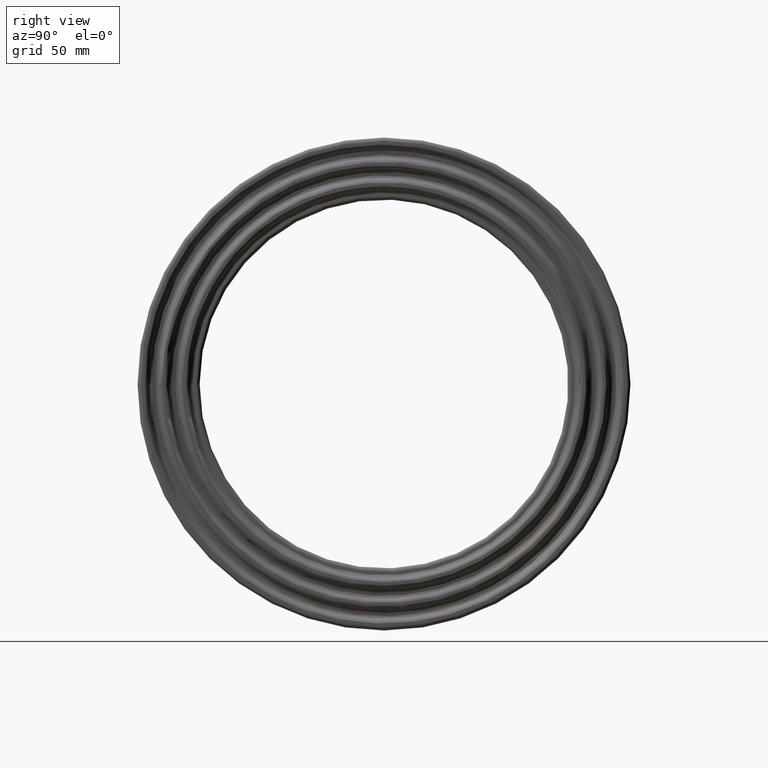
[diagram: clean part render]
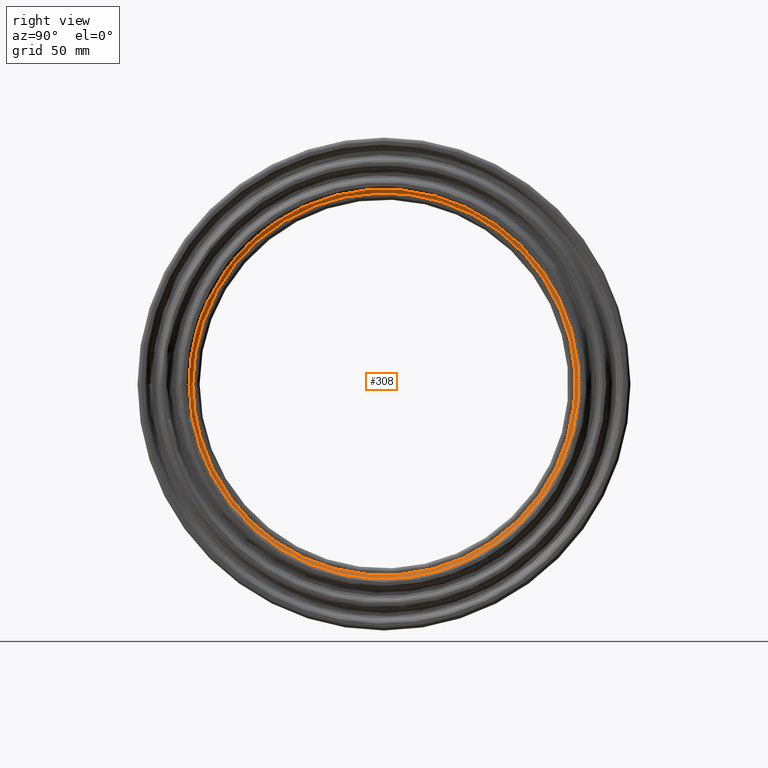
[diagram: same view with one face highlighted and labeled with its STEP entity id]
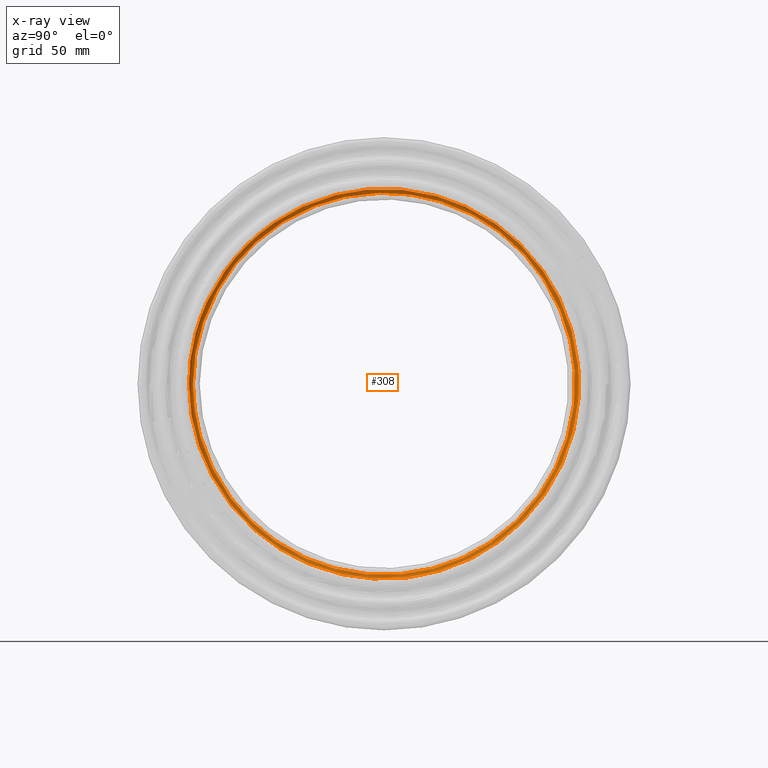
[diagram: x-ray of the same camera — body ghosted, the highlighted face saturated]
A machine part, right view. The second image highlights one B-rep face of the part: STEP entity #308.
The next image is the same camera in x-ray: the body ghosted, the highlighted face saturated — about 0% of this face is hidden behind the body in this view.
In plain terms, the highlighted face is a freeform B-spline surface patch.
Its self-contained STEP definition (entity closure, byte-faithful):
#15=B_SPLINE_SURFACE_WITH_KNOTS('',3,3,((#537,#538,#539,#540,#541,#542,
#543,#544,#545,#546,#547,#548,#549,#550,#551,#552,#553,#554,#555,#556,#557,
#558,#559,#560,#561,#562,#563,#564,#565,#566,#567,#568,#569,#570,#571,#572,
#573,#574,#575,#576,#577,#578,#579,#580,#581,#582,#583,#584,#585,#586,#587),
(#588,#589,#590,#591,#592,#593,#594,#595,#596,#597,#598,#599,#600,#601,
#602,#603,#604,#605,#606,#607,#608,#609,#610,#611,#612,#613,#614,#615,#616,
#617,#618,#619,#620,#621,#622,#623,#624,#625,#626,#627,#628,#629,#630,#631,
#632,#633,#634,#635,#636,#637,#638),(#639,#640,#641,#642,#643,#644,#645,
#646,#647,#648,#649,#650,#651,#652,#653,#654,#655,#656,#657,#658,#659,#660,
#661,#662,#663,#664,#665,#666,#667,#668,#669,#670,#671,#672,#673,#674,#675,
#676,#677,#678,#679,#680,#681,#682,#683,#684,#685,#686,#687,#688,#689),
(#690,#691,#692,#693,#694,#695,#696,#697,#698,#699,#700,#701,#702,#703,
#704,#705,#706,#707,#708,#709,#710,#711,#712,#713,#714,#715,#716,#717,#718,
#719,#720,#721,#722,#723,#724,#725,#726,#727,#728,#729,#730,#731,#732,#733,
#734,#735,#736,#737,#738,#739,#740),(#741,#742,#743,#744,#745,#746,#747,
#748,#749,#750,#751,#752,#753,#754,#755,#756,#757,#758,#759,#760,#761,#762,
#763,#764,#765,#766,#767,#768,#769,#770,#771,#772,#773,#774,#775,#776,#777,
#778,#779,#780,#781,#782,#783,#784,#785,#786,#787,#788,#789,#790,#791)),
 .UNSPECIFIED.,.F.,.T.,.F.,(4,1,4),(4,1,1,1,1,1,1,1,1,1,1,1,1,1,1,1,1,1,
1,1,1,1,1,1,1,1,1,1,1,1,1,1,1,1,1,1,1,1,1,1,1,1,1,1,1,1,1,1,4),(0.,0.571428571428571,
1.),(30.759522136608,31.8580764986297,32.9566308606514,35.1537395846949,
37.3508483087383,38.44940267076,39.5479570327817,41.012696182144,42.4774353315063,
45.4069136302309,46.8716527795931,48.3363919289554,49.8011310783177,51.26587022768,
52.7306093770423,54.1953485264046,55.6600876757668,57.1248268251291,60.0543051238537,
61.7021366668863,62.9837834225783,64.4485225719406,65.9132617213028,66.8287236896543,
67.3780008706651,68.8427400200274,70.3074791693897,71.2229411377411,71.772218318752,
73.2369574681143,74.7016966174766,75.8002509794983,77.9973597035417,78.2719982940471,
79.0959140655634,80.1944684275851,81.2930227896069,81.8422999706177,83.4901315136503,
85.6872402376937,86.0991981234519,86.7857945997154,87.8843489617371,88.7082647332534,
88.9829033237589,90.0814576857806,91.1800120478023,92.0039278193186,92.278566409824),
 .UNSPECIFIED.);
#24=B_SPLINE_CURVE_WITH_KNOTS('',3,(#483,#484,#485,#486,#487,#488,#489,
#490,#491,#492,#493,#494,#495,#496,#497,#498,#499,#500,#501,#502,#503,#504,
#505,#506,#507,#508,#509,#510,#511,#512,#513,#514,#515,#516,#517,#518,#519,
#520,#521,#522,#523,#524,#525,#526,#527,#528,#529,#530,#531,#532,#533),
 .UNSPECIFIED.,.T.,.F.,(4,1,1,1,1,1,1,1,1,1,1,1,1,1,1,1,1,1,1,1,1,1,1,1,
1,1,1,1,1,1,1,1,1,1,1,1,1,1,1,1,1,1,1,1,1,1,1,1,4),(-92.278566409824,-92.0039278193186,
-91.1800120478023,-90.0814576857806,-88.9829033237589,-88.7082647332534,
-87.8843489617371,-86.7857945997154,-86.0991981234519,-85.6872402376937,
-83.4901315136503,-81.8422999706177,-81.2930227896069,-80.1944684275851,
-79.0959140655634,-78.2719982940471,-77.9973597035417,-75.8002509794983,
-74.7016966174766,-73.2369574681143,-71.772218318752,-71.2229411377411,
-70.3074791693897,-68.8427400200274,-67.3780008706651,-66.8287236896543,
-65.9132617213028,-64.4485225719406,-62.9837834225783,-61.7021366668863,
-60.0543051238537,-57.1248268251291,-55.6600876757668,-54.1953485264046,
-52.7306093770423,-51.26587022768,-49.8011310783177,-48.3363919289554,-46.8716527795931,
-45.4069136302309,-42.4774353315063,-41.012696182144,-39.5479570327817,
-38.44940267076,-37.3508483087383,-35.1537395846949,-32.9566308606514,-31.8580764986297,
-30.759522136608),.UNSPECIFIED.);
#25=B_SPLINE_CURVE_WITH_KNOTS('',3,(#794,#795,#796,#797,#798,#799,#800,
#801,#802,#803,#804,#805,#806,#807,#808,#809,#810,#811,#812,#813,#814,#815,
#816,#817,#818,#819,#820,#821,#822,#823,#824,#825,#826,#827,#828,#829,#830,
#831,#832,#833,#834,#835,#836,#837,#838,#839,#840,#841,#842,#843,#844),
 .UNSPECIFIED.,.T.,.F.,(4,1,1,1,1,1,1,1,1,1,1,1,1,1,1,1,1,1,1,1,1,1,1,1,
1,1,1,1,1,1,1,1,1,1,1,1,1,1,1,1,1,1,1,1,1,1,1,1,4),(30.759522136608,31.8580764986297,
32.9566308606514,35.1537395846949,37.3508483087383,38.44940267076,39.5479570327817,
41.012696182144,42.4774353315063,45.4069136302309,46.8716527795931,48.3363919289554,
49.8011310783177,51.26587022768,52.7306093770423,54.1953485264046,55.6600876757668,
57.1248268251291,60.0543051238537,61.7021366668863,62.9837834225783,64.4485225719406,
65.9132617213028,66.8287236896543,67.3780008706651,68.8427400200274,70.3074791693897,
71.2229411377411,71.772218318752,73.2369574681143,74.7016966174766,75.8002509794983,
77.9973597035417,78.2719982940471,79.0959140655634,80.1944684275851,81.2930227896069,
81.8422999706177,83.4901315136503,85.6872402376937,86.0991981234519,86.7857945997154,
87.8843489617371,88.7082647332534,88.9829033237589,90.0814576857806,91.1800120478023,
92.0039278193186,92.278566409824),.UNSPECIFIED.);
#69=FACE_OUTER_BOUND('',#100,.T.);
#100=EDGE_LOOP('',(#235,#236,#237,#238));
#148=CIRCLE('',#341,2.00000000000001);
#170=VERTEX_POINT('',#482);
#172=VERTEX_POINT('',#792);
#198=EDGE_CURVE('',#170,#170,#24,.T.);
#200=EDGE_CURVE('',#172,#170,#148,.T.);
#201=EDGE_CURVE('',#172,#172,#25,.T.);
#235=ORIENTED_EDGE('',*,*,#200,.T.);
#236=ORIENTED_EDGE('',*,*,#198,.T.);
#237=ORIENTED_EDGE('',*,*,#200,.F.);
#238=ORIENTED_EDGE('',*,*,#201,.T.);
#308=ADVANCED_FACE('',(#69),#15,.T.);
#341=AXIS2_PLACEMENT_3D('',#793,#395,#396);
#395=DIRECTION('center_axis',(0.,0.000811828910618773,-0.999999670466856));
#396=DIRECTION('ref_axis',(-0.287499999999994,-0.957780322104063,-0.000777554011735657));
#482=CARTESIAN_POINT('',(111.15,-98.502178322692,-0.0799669424734816));
#483=CARTESIAN_POINT('Ctrl Pts',(111.15,-98.5011021784736,-0.0818176149315181));
#484=CARTESIAN_POINT('Ctrl Pts',(111.15,-98.502064918281,0.835613050477163));
#485=CARTESIAN_POINT('Ctrl Pts',(111.15,-98.4558233940393,4.50210411810118));
#486=CARTESIAN_POINT('Ctrl Pts',(111.15,-97.9483821969076,11.8348021406527));
#487=CARTESIAN_POINT('Ctrl Pts',(111.15,-96.255296192054,21.8849786156422));
#488=CARTESIAN_POINT('Ctrl Pts',(111.15,-93.9542163087297,29.8858635475718));
#489=CARTESIAN_POINT('Ctrl Pts',(111.15,-91.4266561645241,36.8069656742866));
#490=CARTESIAN_POINT('Ctrl Pts',(111.15,-88.5370957198375,43.5336017080951));
#491=CARTESIAN_POINT('Ctrl Pts',(111.15,-84.2989958749755,51.2229079409485));
#492=CARTESIAN_POINT('Ctrl Pts',(111.15,-80.1541333830713,57.3469725465856));
#493=CARTESIAN_POINT('Ctrl Pts',(111.15,-73.4150341705312,66.1752815744166));
#494=CARTESIAN_POINT('Ctrl Pts',(111.15,-63.3436748567273,76.2628944452474));
#495=CARTESIAN_POINT('Ctrl Pts',(111.15,-50.9907667155854,84.5446931057523));
#496=CARTESIAN_POINT('Ctrl Pts',(111.15,-41.1456352136722,89.6269606286772));
#497=CARTESIAN_POINT('Ctrl Pts',(111.15,-32.6863722943871,93.1398978119413));
#498=CARTESIAN_POINT('Ctrl Pts',(111.15,-22.9218006752151,95.9623232653671));
#499=CARTESIAN_POINT('Ctrl Pts',(111.15,-15.6449380185757,97.3102814844855));
#500=CARTESIAN_POINT('Ctrl Pts',(111.15,-4.63301851950891,98.7056140041477));
#501=CARTESIAN_POINT('Ctrl Pts',(111.15,7.30733201443508,98.7153313269945));
#502=CARTESIAN_POINT('Ctrl Pts',(111.15,23.1610942142249,96.0359938115923));
#503=CARTESIAN_POINT('Ctrl Pts',(111.15,36.1124736258455,92.036492049349));
#504=CARTESIAN_POINT('Ctrl Pts',(111.15,46.5935350854336,86.9943214256071));
#505=CARTESIAN_POINT('Ctrl Pts',(111.15,55.0068934047427,81.8291109634503));
#506=CARTESIAN_POINT('Ctrl Pts',(111.15,63.0104976365074,76.0312738554715));
#507=CARTESIAN_POINT('Ctrl Pts',(111.15,72.4448619302149,67.2814531009209));
#508=CARTESIAN_POINT('Ctrl Pts',(111.15,79.7449868149794,58.1390214514548));
#509=CARTESIAN_POINT('Ctrl Pts',(111.15,85.0821004924816,49.8260994912697));
#510=CARTESIAN_POINT('Ctrl Pts',(111.15,89.7574181186312,41.1590706867226));
#511=CARTESIAN_POINT('Ctrl Pts',(111.15,94.458909398182,29.2095184679738));
#512=CARTESIAN_POINT('Ctrl Pts',(111.15,97.6374982222933,15.3049047344944));
#513=CARTESIAN_POINT('Ctrl Pts',(111.15,98.8661052783927,0.610565123542062));
#514=CARTESIAN_POINT('Ctrl Pts',(111.15,97.5909913078417,-18.9817132110673));
#515=CARTESIAN_POINT('Ctrl Pts',(111.15,91.606284061989,-38.4712595606546));
#516=CARTESIAN_POINT('Ctrl Pts',(111.15,81.8093570887898,-55.5256238660361));
#517=CARTESIAN_POINT('Ctrl Pts',(111.15,72.5475209891592,-67.175455495899));
#518=CARTESIAN_POINT('Ctrl Pts',(111.15,61.8103450452468,-77.1591360711964));
#519=CARTESIAN_POINT('Ctrl Pts',(111.15,49.5566024942826,-85.5646696996225));
#520=CARTESIAN_POINT('Ctrl Pts',(111.15,36.2361063535829,-91.9809090680867));
#521=CARTESIAN_POINT('Ctrl Pts',(111.15,22.2038159844903,-96.3531324225678));
#522=CARTESIAN_POINT('Ctrl Pts',(111.15,7.46756563997824,-98.5817292923257));
#523=CARTESIAN_POINT('Ctrl Pts',(111.15,-12.1063283228797,-98.6256566627412));
#524=CARTESIAN_POINT('Ctrl Pts',(111.15,-31.6289851812277,-94.1993142904912));
#525=CARTESIAN_POINT('Ctrl Pts',(111.15,-49.2741591679496,-85.7067732548086));
#526=CARTESIAN_POINT('Ctrl Pts',(111.15,-60.5602004958287,-78.0590470618893));
#527=CARTESIAN_POINT('Ctrl Pts',(111.15,-69.7259057898772,-69.8596441016469));
#528=CARTESIAN_POINT('Ctrl Pts',(111.15,-79.5345930188811,-58.935369059992));
#529=CARTESIAN_POINT('Ctrl Pts',(111.15,-89.4847057361185,-43.1272244037568));
#530=CARTESIAN_POINT('Ctrl Pts',(111.15,-95.5690677185578,-25.7589342703225));
#531=CARTESIAN_POINT('Ctrl Pts',(111.15,-98.0888094330116,-11.1168383519208));
#532=CARTESIAN_POINT('Ctrl Pts',(111.15,-98.4972512192437,-3.75154027656618));
#533=CARTESIAN_POINT('Ctrl Pts',(111.15,-98.5011021784736,-0.0818176149315181));
#537=CARTESIAN_POINT('Ctrl Pts',(111.15,-98.5011021784736,-0.0818176149315181));
#538=CARTESIAN_POINT('Ctrl Pts',(111.15,-98.4972512192437,-3.75154027656618));
#539=CARTESIAN_POINT('Ctrl Pts',(111.15,-98.0888094330116,-11.1168383519208));
#540=CARTESIAN_POINT('Ctrl Pts',(111.15,-95.5690677185578,-25.7589342703225));
#541=CARTESIAN_POINT('Ctrl Pts',(111.15,-89.4847057361185,-43.1272244037568));
#542=CARTESIAN_POINT('Ctrl Pts',(111.15,-79.5345930188811,-58.935369059992));
#543=CARTESIAN_POINT('Ctrl Pts',(111.15,-69.7259057898772,-69.8596441016469));
#544=CARTESIAN_POINT('Ctrl Pts',(111.15,-60.5602004958287,-78.0590470618893));
#545=CARTESIAN_POINT('Ctrl Pts',(111.15,-49.2741591679496,-85.7067732548086));
#546=CARTESIAN_POINT('Ctrl Pts',(111.15,-31.6289851812277,-94.1993142904912));
#547=CARTESIAN_POINT('Ctrl Pts',(111.15,-12.1063283228797,-98.6256566627412));
#548=CARTESIAN_POINT('Ctrl Pts',(111.15,7.46756563997824,-98.5817292923257));
#549=CARTESIAN_POINT('Ctrl Pts',(111.15,22.2038159844903,-96.3531324225678));
#550=CARTESIAN_POINT('Ctrl Pts',(111.15,36.2361063535829,-91.9809090680867));
#551=CARTESIAN_POINT('Ctrl Pts',(111.15,49.5566024942826,-85.5646696996225));
#552=CARTESIAN_POINT('Ctrl Pts',(111.15,61.8103450452468,-77.1591360711964));
#553=CARTESIAN_POINT('Ctrl Pts',(111.15,72.5475209891592,-67.175455495899));
#554=CARTESIAN_POINT('Ctrl Pts',(111.15,81.8093570887898,-55.5256238660361));
#555=CARTESIAN_POINT('Ctrl Pts',(111.15,91.606284061989,-38.4712595606546));
#556=CARTESIAN_POINT('Ctrl Pts',(111.15,97.5909913078417,-18.9817132110673));
#557=CARTESIAN_POINT('Ctrl Pts',(111.15,98.8661052783927,0.610565123542062));
#558=CARTESIAN_POINT('Ctrl Pts',(111.15,97.6374982222933,15.3049047344944));
#559=CARTESIAN_POINT('Ctrl Pts',(111.15,94.458909398182,29.2095184679738));
#560=CARTESIAN_POINT('Ctrl Pts',(111.15,89.7574181186312,41.1590706867226));
#561=CARTESIAN_POINT('Ctrl Pts',(111.15,85.0821004924816,49.8260994912697));
#562=CARTESIAN_POINT('Ctrl Pts',(111.15,79.7449868149794,58.1390214514548));
#563=CARTESIAN_POINT('Ctrl Pts',(111.15,72.4448619302149,67.2814531009209));
#564=CARTESIAN_POINT('Ctrl Pts',(111.15,63.0104976365074,76.0312738554715));
#565=CARTESIAN_POINT('Ctrl Pts',(111.15,55.0068934047427,81.8291109634503));
#566=CARTESIAN_POINT('Ctrl Pts',(111.15,46.5935350854336,86.9943214256071));
#567=CARTESIAN_POINT('Ctrl Pts',(111.15,36.1124736258455,92.036492049349));
#568=CARTESIAN_POINT('Ctrl Pts',(111.15,23.1610942142249,96.0359938115923));
#569=CARTESIAN_POINT('Ctrl Pts',(111.15,7.30733201443508,98.7153313269945));
#570=CARTESIAN_POINT('Ctrl Pts',(111.15,-4.63301851950891,98.7056140041477));
#571=CARTESIAN_POINT('Ctrl Pts',(111.15,-15.6449380185757,97.3102814844855));
#572=CARTESIAN_POINT('Ctrl Pts',(111.15,-22.9218006752151,95.9623232653671));
#573=CARTESIAN_POINT('Ctrl Pts',(111.15,-32.6863722943871,93.1398978119413));
#574=CARTESIAN_POINT('Ctrl Pts',(111.15,-41.1456352136722,89.6269606286772));
#575=CARTESIAN_POINT('Ctrl Pts',(111.15,-50.9907667155854,84.5446931057523));
#576=CARTESIAN_POINT('Ctrl Pts',(111.15,-63.3436748567273,76.2628944452474));
#577=CARTESIAN_POINT('Ctrl Pts',(111.15,-73.4150341705312,66.1752815744166));
#578=CARTESIAN_POINT('Ctrl Pts',(111.15,-80.1541333830713,57.3469725465856));
#579=CARTESIAN_POINT('Ctrl Pts',(111.15,-84.2989958749755,51.2229079409485));
#580=CARTESIAN_POINT('Ctrl Pts',(111.15,-88.5370957198375,43.5336017080951));
#581=CARTESIAN_POINT('Ctrl Pts',(111.15,-91.4266561645241,36.8069656742866));
#582=CARTESIAN_POINT('Ctrl Pts',(111.15,-93.9542163087297,29.8858635475718));
#583=CARTESIAN_POINT('Ctrl Pts',(111.15,-96.255296192054,21.8849786156422));
#584=CARTESIAN_POINT('Ctrl Pts',(111.15,-97.9483821969076,11.8348021406527));
#585=CARTESIAN_POINT('Ctrl Pts',(111.15,-98.4558233940393,4.50210411810118));
#586=CARTESIAN_POINT('Ctrl Pts',(111.15,-98.502064918281,0.835613050477163));
#587=CARTESIAN_POINT('Ctrl Pts',(111.15,-98.5011021784736,-0.0818176149315181));
#588=CARTESIAN_POINT('Ctrl Pts',(111.15,-98.9884042703962,-0.0822240249719324));
#589=CARTESIAN_POINT('Ctrl Pts',(111.15,-98.9845347379661,-3.77010540392983));
#590=CARTESIAN_POINT('Ctrl Pts',(111.15,-98.5740713929042,-11.1718290653194));
#591=CARTESIAN_POINT('Ctrl Pts',(111.15,-96.0418647133974,-25.8863749252491));
#592=CARTESIAN_POINT('Ctrl Pts',(111.15,-89.9273997631064,-43.3405805080009));
#593=CARTESIAN_POINT('Ctrl Pts',(111.15,-79.9280688527756,-59.2269294483814));
#594=CARTESIAN_POINT('Ctrl Pts',(111.15,-70.0708495596697,-70.2052532533737));
#595=CARTESIAN_POINT('Ctrl Pts',(111.15,-60.8598013316207,-78.4452202055552));
#596=CARTESIAN_POINT('Ctrl Pts',(111.15,-49.5179314130396,-86.1307768019212));
#597=CARTESIAN_POINT('Ctrl Pts',(111.15,-31.7854522305731,-94.6653377950745));
#598=CARTESIAN_POINT('Ctrl Pts',(111.15,-12.1662249205169,-99.1135731505625));
#599=CARTESIAN_POINT('Ctrl Pts',(111.15,7.50450945629904,-99.0694310043301));
#600=CARTESIAN_POINT('Ctrl Pts',(111.15,22.3136627313281,-96.8298072672849));
#601=CARTESIAN_POINT('Ctrl Pts',(111.15,36.415370764022,-92.4359557795409));
#602=CARTESIAN_POINT('Ctrl Pts',(111.15,49.801772613239,-85.9879701933578));
#603=CARTESIAN_POINT('Ctrl Pts',(111.15,62.1161278441101,-77.5408574548864));
#604=CARTESIAN_POINT('Ctrl Pts',(111.15,72.9064250600651,-67.5077867764269));
#605=CARTESIAN_POINT('Ctrl Pts',(111.15,82.2140832145348,-55.8003163781204));
#606=CARTESIAN_POINT('Ctrl Pts',(111.15,92.0594770564582,-38.661582523024));
#607=CARTESIAN_POINT('Ctrl Pts',(111.15,98.0737907036125,-19.0756187507289));
#608=CARTESIAN_POINT('Ctrl Pts',(111.15,99.3552124873927,0.613582646410975));
#609=CARTESIAN_POINT('Ctrl Pts',(111.15,98.1205288536069,15.3806240988864));
#610=CARTESIAN_POINT('Ctrl Pts',(111.15,94.9262126926399,29.3540205315199));
#611=CARTESIAN_POINT('Ctrl Pts',(111.15,90.2014651266992,41.3626936642141));
#612=CARTESIAN_POINT('Ctrl Pts',(111.15,85.5030157224813,50.0725963275323));
#613=CARTESIAN_POINT('Ctrl Pts',(111.15,80.1395003167958,58.4266469535524));
#614=CARTESIAN_POINT('Ctrl Pts',(111.15,72.8032561673785,67.6143061301258));
#615=CARTESIAN_POINT('Ctrl Pts',(111.15,63.3222282842576,76.4074098448185));
#616=CARTESIAN_POINT('Ctrl Pts',(111.15,55.2790171770149,82.233936358203));
#617=CARTESIAN_POINT('Ctrl Pts',(111.15,46.8240458753122,87.424695498228));
#618=CARTESIAN_POINT('Ctrl Pts',(111.15,36.2911250969265,92.4918137256341));
#619=CARTESIAN_POINT('Ctrl Pts',(111.15,23.275673389259,96.5111013602281));
#620=CARTESIAN_POINT('Ctrl Pts',(111.15,7.34348007958442,99.2036927526891));
#621=CARTESIAN_POINT('Ctrl Pts',(111.15,-4.65593087877497,99.1939284119078));
#622=CARTESIAN_POINT('Ctrl Pts',(111.15,-15.7223390900355,97.7916919607847));
#623=CARTESIAN_POINT('Ctrl Pts',(111.15,-23.0352021334436,96.4370643602177));
#624=CARTESIAN_POINT('Ctrl Pts',(111.15,-32.8480719053674,93.6006793719869));
#625=CARTESIAN_POINT('Ctrl Pts',(111.15,-41.3491942087686,90.0703582253733));
#626=CARTESIAN_POINT('Ctrl Pts',(111.15,-51.2430251035824,84.9629526226496));
#627=CARTESIAN_POINT('Ctrl Pts',(111.15,-63.657050561022,76.640174577584));
#628=CARTESIAN_POINT('Ctrl Pts',(111.15,-73.7782252237075,66.5026705151904));
#629=CARTESIAN_POINT('Ctrl Pts',(111.15,-80.5506711058506,57.6306753770817));
#630=CARTESIAN_POINT('Ctrl Pts',(111.15,-84.7160447892557,51.4763069536734));
#631=CARTESIAN_POINT('Ctrl Pts',(111.15,-88.9750989466969,43.7489775500065));
#632=CARTESIAN_POINT('Ctrl Pts',(111.15,-91.8789586125165,36.9890596946041));
#633=CARTESIAN_POINT('Ctrl Pts',(111.15,-94.4190295119182,30.0336985756954));
#634=CARTESIAN_POINT('Ctrl Pts',(111.15,-96.731484938163,21.9932528881493));
#635=CARTESIAN_POINT('Ctrl Pts',(111.15,-98.4329504077711,11.8933557078052));
#636=CARTESIAN_POINT('Ctrl Pts',(111.15,-98.9429006509085,4.52438258579125));
#637=CARTESIAN_POINT('Ctrl Pts',(111.15,-98.9893716535037,0.839746319767557));
#638=CARTESIAN_POINT('Ctrl Pts',(111.15,-98.9884042703962,-0.0822240249719324));
#639=CARTESIAN_POINT('Ctrl Pts',(111.476349721952,-99.8369951325396,-0.0829268308219567));
#640=CARTESIAN_POINT('Ctrl Pts',(111.476349721952,-99.8330918259368,-3.80241806110839));
#641=CARTESIAN_POINT('Ctrl Pts',(111.476349721952,-99.4191108972401,-11.2676088434151));
#642=CARTESIAN_POINT('Ctrl Pts',(111.476349721952,-96.8651957489827,-26.1082807447607));
#643=CARTESIAN_POINT('Ctrl Pts',(111.476349721952,-90.6983169960146,-43.7121254643255));
#644=CARTESIAN_POINT('Ctrl Pts',(111.476349721952,-80.6132570374312,-59.7346638900175));
#645=CARTESIAN_POINT('Ctrl Pts',(111.476349721952,-70.6715440001128,-70.8070951582127));
#646=CARTESIAN_POINT('Ctrl Pts',(111.476349721952,-61.3815311040691,-79.1177001402357));
#647=CARTESIAN_POINT('Ctrl Pts',(111.476349721952,-49.9424247185406,-86.8691474865886));
#648=CARTESIAN_POINT('Ctrl Pts',(111.476349721952,-32.0579459888518,-95.4768647013986));
#649=CARTESIAN_POINT('Ctrl Pts',(111.476349721952,-12.2705158053382,-99.9632393016199));
#650=CARTESIAN_POINT('Ctrl Pts',(111.476349721952,7.56884223999181,-99.9187155421057));
#651=CARTESIAN_POINT('Ctrl Pts',(111.476349721952,22.5049487202605,-97.6598943700429));
#652=CARTESIAN_POINT('Ctrl Pts',(111.476349721952,36.7275486350759,-93.2283734846258));
#653=CARTESIAN_POINT('Ctrl Pts',(111.476349721952,50.228698456739,-86.7251167032999));
#654=CARTESIAN_POINT('Ctrl Pts',(111.476349721952,62.648631062071,-78.2055843005399));
#655=CARTESIAN_POINT('Ctrl Pts',(111.476349721952,73.5314262257198,-68.0865026941376));
#656=CARTESIAN_POINT('Ctrl Pts',(111.476349721952,82.9188727853441,-56.2786748225032));
#657=CARTESIAN_POINT('Ctrl Pts',(111.476349721952,92.8486678300173,-38.9930152510453));
#658=CARTESIAN_POINT('Ctrl Pts',(111.476349721952,98.9145411991567,-19.2391473284745));
#659=CARTESIAN_POINT('Ctrl Pts',(111.476349721952,100.206948636921,0.618846502137037));
#660=CARTESIAN_POINT('Ctrl Pts',(111.476349721952,98.9616785601345,15.5124722799265));
#661=CARTESIAN_POINT('Ctrl Pts',(111.476349721952,95.739981614193,29.6056648149427));
#662=CARTESIAN_POINT('Ctrl Pts',(111.476349721952,90.9747270032393,41.7172783065017));
#663=CARTESIAN_POINT('Ctrl Pts',(111.476349721952,86.2360022658169,50.5018520663954));
#664=CARTESIAN_POINT('Ctrl Pts',(111.476349721952,80.8265050377676,58.9275148463962));
#665=CARTESIAN_POINT('Ctrl Pts',(111.476349721952,73.4273753743397,68.1939385229271));
#666=CARTESIAN_POINT('Ctrl Pts',(111.476349721952,63.8650577508146,77.0624271964142));
#667=CARTESIAN_POINT('Ctrl Pts',(111.476349721952,55.7529098521285,82.9388941795052));
#668=CARTESIAN_POINT('Ctrl Pts',(111.476349721952,47.2254454258714,88.1741574595895));
#669=CARTESIAN_POINT('Ctrl Pts',(111.476349721952,36.6022395014279,93.2847102976047));
#670=CARTESIAN_POINT('Ctrl Pts',(111.476349721952,23.475210612078,97.3384542456041));
#671=CARTESIAN_POINT('Ctrl Pts',(111.476349721952,7.40643625565425,100.054129826547));
#672=CARTESIAN_POINT('Ctrl Pts',(111.476349721952,-4.69585450711804,100.044280450792));
#673=CARTESIAN_POINT('Ctrl Pts',(111.476349721952,-15.8571172924238,98.6300243792203));
#674=CARTESIAN_POINT('Ctrl Pts',(111.476349721952,-23.232670191718,97.2637850631695));
#675=CARTESIAN_POINT('Ctrl Pts',(111.476349721952,-33.1296732397035,94.403080397876));
#676=CARTESIAN_POINT('Ctrl Pts',(111.476349721952,-41.7036599958277,90.8425012273831));
#677=CARTESIAN_POINT('Ctrl Pts',(111.476349721952,-51.6823148210674,85.6913057099643));
#678=CARTESIAN_POINT('Ctrl Pts',(111.476349721952,-64.2027544008675,77.2971895062036));
#679=CARTESIAN_POINT('Ctrl Pts',(111.476349721952,-74.410705997957,67.0727627733797));
#680=CARTESIAN_POINT('Ctrl Pts',(111.476349721952,-81.2412005133819,58.1247250750189));
#681=CARTESIAN_POINT('Ctrl Pts',(111.476349721952,-85.4422750517723,51.9176063547386));
#682=CARTESIAN_POINT('Ctrl Pts',(111.476349721952,-89.7378559944985,44.1240118088494));
#683=CARTESIAN_POINT('Ctrl Pts',(111.476349721952,-92.6666042558973,37.3061487008099));
#684=CARTESIAN_POINT('Ctrl Pts',(111.476349721952,-95.228442086885,30.2911858970135));
#685=CARTESIAN_POINT('Ctrl Pts',(111.476349721952,-97.5607317864586,22.1817859905496));
#686=CARTESIAN_POINT('Ctrl Pts',(111.476349721952,-99.2767789141665,11.9953070627644));
#687=CARTESIAN_POINT('Ctrl Pts',(111.476349721952,-99.7911024763568,4.56316116681938));
#688=CARTESIAN_POINT('Ctrl Pts',(111.476349721952,-99.8379709591903,0.846945976749666));
#689=CARTESIAN_POINT('Ctrl Pts',(111.476349721952,-99.8369951325396,-0.0829268308219567));
#690=CARTESIAN_POINT('Ctrl Pts',(112.22495013648,-100.311567980973,-0.0833226289323434));
#691=CARTESIAN_POINT('Ctrl Pts',(112.22495013648,-100.307646587576,-3.820498247096));
#692=CARTESIAN_POINT('Ctrl Pts',(112.22495013648,-99.8916969045524,-11.3211630802437));
#693=CARTESIAN_POINT('Ctrl Pts',(112.22495013648,-97.3256424011263,-26.2323924284816));
#694=CARTESIAN_POINT('Ctrl Pts',(112.22495013648,-91.1294470195561,-43.9199083028415));
#695=CARTESIAN_POINT('Ctrl Pts',(112.22495013648,-80.9964545567666,-60.0186081667588));
#696=CARTESIAN_POINT('Ctrl Pts',(112.22495013648,-71.0074771861965,-71.1436763549418));
#697=CARTESIAN_POINT('Ctrl Pts',(112.22495013648,-61.6733058021689,-79.4937857217549));
#698=CARTESIAN_POINT('Ctrl Pts',(112.22495013648,-50.1798291873582,-87.2820752595886));
#699=CARTESIAN_POINT('Ctrl Pts',(112.22495013648,-32.2103258075047,-95.9307148071055));
#700=CARTESIAN_POINT('Ctrl Pts',(112.22495013648,-12.3288478032681,-100.438410492122));
#701=CARTESIAN_POINT('Ctrl Pts',(112.22495013648,7.60482101584223,-100.393677573723));
#702=CARTESIAN_POINT('Ctrl Pts',(112.22495013648,22.6119260658681,-98.1241175726277));
#703=CARTESIAN_POINT('Ctrl Pts',(112.22495013648,36.9021303183455,-93.6715335265307));
#704=CARTESIAN_POINT('Ctrl Pts',(112.22495013648,50.4674642858358,-87.1373597878839));
#705=CARTESIAN_POINT('Ctrl Pts',(112.22495013648,62.9464262317375,-78.5773344110575));
#706=CARTESIAN_POINT('Ctrl Pts',(112.22495013648,73.880955047017,-68.4101528658462));
#707=CARTESIAN_POINT('Ctrl Pts',(112.22495013648,83.3130267091186,-56.5461918453497));
#708=CARTESIAN_POINT('Ctrl Pts',(112.22495013648,93.2900225765075,-39.1783666183823));
#709=CARTESIAN_POINT('Ctrl Pts',(112.22495013648,99.3847289697277,-19.3305998787562));
#710=CARTESIAN_POINT('Ctrl Pts',(112.22495013648,100.683279447794,0.621785193752642));
#711=CARTESIAN_POINT('Ctrl Pts',(112.22495013648,99.4320915289436,15.586213721329));
#712=CARTESIAN_POINT('Ctrl Pts',(112.22495013648,96.1950780676725,29.7463922073996));
#713=CARTESIAN_POINT('Ctrl Pts',(112.22495013648,91.4071746753761,41.9155822752872));
#714=CARTESIAN_POINT('Ctrl Pts',(112.22495013648,86.64592239964,50.7419099395277));
#715=CARTESIAN_POINT('Ctrl Pts',(112.22495013648,81.2107131109352,59.2076270358472));
#716=CARTESIAN_POINT('Ctrl Pts',(112.22495013648,73.7764076746226,68.5180968074168));
#717=CARTESIAN_POINT('Ctrl Pts',(112.22495013648,64.1686454275916,77.4287377988714));
#718=CARTESIAN_POINT('Ctrl Pts',(112.22495013648,56.0179252290044,83.3331447831945));
#719=CARTESIAN_POINT('Ctrl Pts',(112.22495013648,47.4499348536816,88.5932893501135));
#720=CARTESIAN_POINT('Ctrl Pts',(112.22495013648,36.7762242530764,93.7281381217078));
#721=CARTESIAN_POINT('Ctrl Pts',(112.22495013648,23.5867967571954,97.8011510970782));
#722=CARTESIAN_POINT('Ctrl Pts',(112.22495013648,7.44164005894488,100.529734335686));
#723=CARTESIAN_POINT('Ctrl Pts',(112.22495013648,-4.71816833192957,100.519839172929));
#724=CARTESIAN_POINT('Ctrl Pts',(112.22495013648,-15.9324965102676,99.0988595109822));
#725=CARTESIAN_POINT('Ctrl Pts',(112.22495013648,-23.3431094000365,97.7261250281518));
#726=CARTESIAN_POINT('Ctrl Pts',(112.22495013648,-33.2871489395253,94.8518254863128));
#727=CARTESIAN_POINT('Ctrl Pts',(112.22495013648,-41.9019016599999,91.2743164415807));
#728=CARTESIAN_POINT('Ctrl Pts',(112.22495013648,-51.9279837427367,86.0986395104936));
#729=CARTESIAN_POINT('Ctrl Pts',(112.22495013648,-64.50794415386,77.6646143600221));
#730=CARTESIAN_POINT('Ctrl Pts',(112.22495013648,-74.7644098051886,67.391599723268));
#731=CARTESIAN_POINT('Ctrl Pts',(112.22495013648,-81.6273799313323,58.4010170493361));
#732=CARTESIAN_POINT('Ctrl Pts',(112.22495013648,-85.848429885605,52.1643860856154));
#733=CARTESIAN_POINT('Ctrl Pts',(112.22495013648,-90.1644177431176,44.3337616498556));
#734=CARTESIAN_POINT('Ctrl Pts',(112.22495013648,-93.1070917137382,37.4834860934245));
#735=CARTESIAN_POINT('Ctrl Pts',(112.22495013648,-95.6811135123451,30.435159156989));
#736=CARTESIAN_POINT('Ctrl Pts',(112.22495013648,-98.0244815828351,22.2872319504242));
#737=CARTESIAN_POINT('Ctrl Pts',(112.22495013648,-99.7486892969853,12.052331113347));
#738=CARTESIAN_POINT('Ctrl Pts',(112.22495013648,-100.26545636069,4.58485769416971));
#739=CARTESIAN_POINT('Ctrl Pts',(112.22495013648,-100.312548329322,0.850971275608586));
#740=CARTESIAN_POINT('Ctrl Pts',(112.22495013648,-100.311567980973,-0.0833226289323434));
#741=CARTESIAN_POINT('Ctrl Pts',(112.575,-100.416641895028,-0.0834087127715318));
#742=CARTESIAN_POINT('Ctrl Pts',(112.575,-100.412716046632,-3.82449605309133));
#743=CARTESIAN_POINT('Ctrl Pts',(112.575,-99.9963313394975,-11.3330262413419));
#744=CARTESIAN_POINT('Ctrl Pts',(112.575,-97.4275884948761,-26.2598653315964));
#745=CARTESIAN_POINT('Ctrl Pts',(112.575,-91.224904617864,-43.9659146253184));
#746=CARTESIAN_POINT('Ctrl Pts',(112.575,-81.0812931917543,-60.0814784704191));
#747=CARTESIAN_POINT('Ctrl Pts',(112.575,-71.0818575392414,-71.2181966447297));
#748=CARTESIAN_POINT('Ctrl Pts',(112.575,-61.7379078181495,-79.577052460575));
#749=CARTESIAN_POINT('Ctrl Pts',(112.575,-50.2323881298447,-87.373503113829));
#750=CARTESIAN_POINT('Ctrl Pts',(112.575,-32.2440704540724,-96.0311976278841));
#751=CARTESIAN_POINT('Ctrl Pts',(112.575,-12.3417587110808,-100.543618576166));
#752=CARTESIAN_POINT('Ctrl Pts',(112.575,7.61278653855692,-100.498836955181));
#753=CARTESIAN_POINT('Ctrl Pts',(112.575,22.6356110653238,-98.2269008158941));
#754=CARTESIAN_POINT('Ctrl Pts',(112.575,36.9407857871977,-93.7696513317562));
#755=CARTESIAN_POINT('Ctrl Pts',(112.575,50.5203240993798,-87.2286360869884));
#756=CARTESIAN_POINT('Ctrl Pts',(112.575,63.0123637862508,-78.6596410033296));
#757=CARTESIAN_POINT('Ctrl Pts',(112.575,73.9583443679727,-68.4818089288471));
#758=CARTESIAN_POINT('Ctrl Pts',(112.575,83.4002943394754,-56.605424349985));
#759=CARTESIAN_POINT('Ctrl Pts',(112.575,93.3877410358281,-39.2194057641436));
#760=CARTESIAN_POINT('Ctrl Pts',(112.575,99.4888322019399,-19.3508484262058));
#761=CARTESIAN_POINT('Ctrl Pts',(112.575,100.788743168663,0.622438713967126));
#762=CARTESIAN_POINT('Ctrl Pts',(112.575,99.5362435310605,15.6025374739117));
#763=CARTESIAN_POINT('Ctrl Pts',(112.575,96.2958410520712,29.7775526471796));
#764=CARTESIAN_POINT('Ctrl Pts',(112.575,91.5029204070223,41.9594864470867));
#765=CARTESIAN_POINT('Ctrl Pts',(112.575,86.7366824114321,50.7950619737763));
#766=CARTESIAN_POINT('Ctrl Pts',(112.575,81.2957784920452,59.2696443806284));
#767=CARTESIAN_POINT('Ctrl Pts',(112.575,73.85368891,68.5898678572225));
#768=CARTESIAN_POINT('Ctrl Pts',(112.575,64.2358556082778,77.5098453795389));
#769=CARTESIAN_POINT('Ctrl Pts',(112.575,56.0766061964851,83.4204323654869));
#770=CARTESIAN_POINT('Ctrl Pts',(112.575,47.4996342560713,88.6860900872764));
#771=CARTESIAN_POINT('Ctrl Pts',(112.575,36.8147487878836,93.8263152289252));
#772=CARTESIAN_POINT('Ctrl Pts',(112.575,23.6115053757754,97.9035948464674));
#773=CARTESIAN_POINT('Ctrl Pts',(112.575,7.44943686794557,100.635037133403));
#774=CARTESIAN_POINT('Ctrl Pts',(112.575,-4.72311630303998,100.625130838885));
#775=CARTESIAN_POINT('Ctrl Pts',(112.575,-15.9491833465449,99.2026634466168));
#776=CARTESIAN_POINT('Ctrl Pts',(112.575,-23.3675583225636,97.8284916375194));
#777=CARTESIAN_POINT('Ctrl Pts',(112.575,-33.3220204540039,94.9511787977243));
#778=CARTESIAN_POINT('Ctrl Pts',(112.575,-41.9457896959218,91.3699259251182));
#779=CARTESIAN_POINT('Ctrl Pts',(112.575,-51.9823783489687,86.188824124454));
#780=CARTESIAN_POINT('Ctrl Pts',(112.575,-64.5755120879565,77.7459702685468));
#781=CARTESIAN_POINT('Ctrl Pts',(112.575,-74.8427279793884,67.4621847390155));
#782=CARTESIAN_POINT('Ctrl Pts',(112.575,-81.7128816868522,58.4621925909063));
#783=CARTESIAN_POINT('Ctrl Pts',(112.575,-85.9383488476108,52.2190339983047));
#784=CARTESIAN_POINT('Ctrl Pts',(112.575,-90.2588665375124,44.3801947028151));
#785=CARTESIAN_POINT('Ctrl Pts',(112.575,-93.2046199350975,37.5227465441005));
#786=CARTESIAN_POINT('Ctrl Pts',(112.575,-95.7813332535838,30.467050532517));
#787=CARTESIAN_POINT('Ctrl Pts',(112.575,-98.1271619753472,22.3105733024736));
#788=CARTESIAN_POINT('Ctrl Pts',(112.575,-99.8531732309251,12.0649521901101));
#789=CARTESIAN_POINT('Ctrl Pts',(112.575,-100.370482579229,4.58965602417687));
#790=CARTESIAN_POINT('Ctrl Pts',(112.575,-100.417623357126,0.851863122308432));
#791=CARTESIAN_POINT('Ctrl Pts',(112.575,-100.416641895028,-0.0834087127715318));
#792=CARTESIAN_POINT('',(112.575,-100.4177389669,-0.0815220504969529));
#793=CARTESIAN_POINT('Origin',(113.15,-98.502178322692,-0.0799669424734816));
#794=CARTESIAN_POINT('Ctrl Pts',(112.575,-100.416641895028,-0.0834087127715318));
#795=CARTESIAN_POINT('Ctrl Pts',(112.575,-100.412716046632,-3.82449605309133));
#796=CARTESIAN_POINT('Ctrl Pts',(112.575,-99.9963313394975,-11.3330262413419));
#797=CARTESIAN_POINT('Ctrl Pts',(112.575,-97.4275884948761,-26.2598653315964));
#798=CARTESIAN_POINT('Ctrl Pts',(112.575,-91.224904617864,-43.9659146253184));
#799=CARTESIAN_POINT('Ctrl Pts',(112.575,-81.0812931917543,-60.0814784704191));
#800=CARTESIAN_POINT('Ctrl Pts',(112.575,-71.0818575392414,-71.2181966447297));
#801=CARTESIAN_POINT('Ctrl Pts',(112.575,-61.7379078181495,-79.577052460575));
#802=CARTESIAN_POINT('Ctrl Pts',(112.575,-50.2323881298447,-87.373503113829));
#803=CARTESIAN_POINT('Ctrl Pts',(112.575,-32.2440704540724,-96.0311976278841));
#804=CARTESIAN_POINT('Ctrl Pts',(112.575,-12.3417587110808,-100.543618576166));
#805=CARTESIAN_POINT('Ctrl Pts',(112.575,7.61278653855692,-100.498836955181));
#806=CARTESIAN_POINT('Ctrl Pts',(112.575,22.6356110653238,-98.2269008158941));
#807=CARTESIAN_POINT('Ctrl Pts',(112.575,36.9407857871977,-93.7696513317562));
#808=CARTESIAN_POINT('Ctrl Pts',(112.575,50.5203240993798,-87.2286360869884));
#809=CARTESIAN_POINT('Ctrl Pts',(112.575,63.0123637862508,-78.6596410033296));
#810=CARTESIAN_POINT('Ctrl Pts',(112.575,73.9583443679727,-68.4818089288471));
#811=CARTESIAN_POINT('Ctrl Pts',(112.575,83.4002943394754,-56.605424349985));
#812=CARTESIAN_POINT('Ctrl Pts',(112.575,93.3877410358281,-39.2194057641436));
#813=CARTESIAN_POINT('Ctrl Pts',(112.575,99.4888322019399,-19.3508484262058));
#814=CARTESIAN_POINT('Ctrl Pts',(112.575,100.788743168663,0.622438713967126));
#815=CARTESIAN_POINT('Ctrl Pts',(112.575,99.5362435310605,15.6025374739117));
#816=CARTESIAN_POINT('Ctrl Pts',(112.575,96.2958410520712,29.7775526471796));
#817=CARTESIAN_POINT('Ctrl Pts',(112.575,91.5029204070223,41.9594864470867));
#818=CARTESIAN_POINT('Ctrl Pts',(112.575,86.7366824114321,50.7950619737763));
#819=CARTESIAN_POINT('Ctrl Pts',(112.575,81.2957784920452,59.2696443806284));
#820=CARTESIAN_POINT('Ctrl Pts',(112.575,73.85368891,68.5898678572225));
#821=CARTESIAN_POINT('Ctrl Pts',(112.575,64.2358556082778,77.5098453795389));
#822=CARTESIAN_POINT('Ctrl Pts',(112.575,56.0766061964851,83.4204323654869));
#823=CARTESIAN_POINT('Ctrl Pts',(112.575,47.4996342560713,88.6860900872764));
#824=CARTESIAN_POINT('Ctrl Pts',(112.575,36.8147487878836,93.8263152289252));
#825=CARTESIAN_POINT('Ctrl Pts',(112.575,23.6115053757754,97.9035948464674));
#826=CARTESIAN_POINT('Ctrl Pts',(112.575,7.44943686794557,100.635037133403));
#827=CARTESIAN_POINT('Ctrl Pts',(112.575,-4.72311630303998,100.625130838885));
#828=CARTESIAN_POINT('Ctrl Pts',(112.575,-15.9491833465449,99.2026634466168));
#829=CARTESIAN_POINT('Ctrl Pts',(112.575,-23.3675583225636,97.8284916375194));
#830=CARTESIAN_POINT('Ctrl Pts',(112.575,-33.3220204540039,94.9511787977243));
#831=CARTESIAN_POINT('Ctrl Pts',(112.575,-41.9457896959218,91.3699259251182));
#832=CARTESIAN_POINT('Ctrl Pts',(112.575,-51.9823783489687,86.188824124454));
#833=CARTESIAN_POINT('Ctrl Pts',(112.575,-64.5755120879565,77.7459702685468));
#834=CARTESIAN_POINT('Ctrl Pts',(112.575,-74.8427279793884,67.4621847390155));
#835=CARTESIAN_POINT('Ctrl Pts',(112.575,-81.7128816868522,58.4621925909063));
#836=CARTESIAN_POINT('Ctrl Pts',(112.575,-85.9383488476108,52.2190339983047));
#837=CARTESIAN_POINT('Ctrl Pts',(112.575,-90.2588665375124,44.3801947028151));
#838=CARTESIAN_POINT('Ctrl Pts',(112.575,-93.2046199350975,37.5227465441005));
#839=CARTESIAN_POINT('Ctrl Pts',(112.575,-95.7813332535838,30.467050532517));
#840=CARTESIAN_POINT('Ctrl Pts',(112.575,-98.1271619753472,22.3105733024736));
#841=CARTESIAN_POINT('Ctrl Pts',(112.575,-99.8531732309251,12.0649521901101));
#842=CARTESIAN_POINT('Ctrl Pts',(112.575,-100.370482579229,4.58965602417687));
#843=CARTESIAN_POINT('Ctrl Pts',(112.575,-100.417623357126,0.851863122308432));
#844=CARTESIAN_POINT('Ctrl Pts',(112.575,-100.416641895028,-0.0834087127715318));